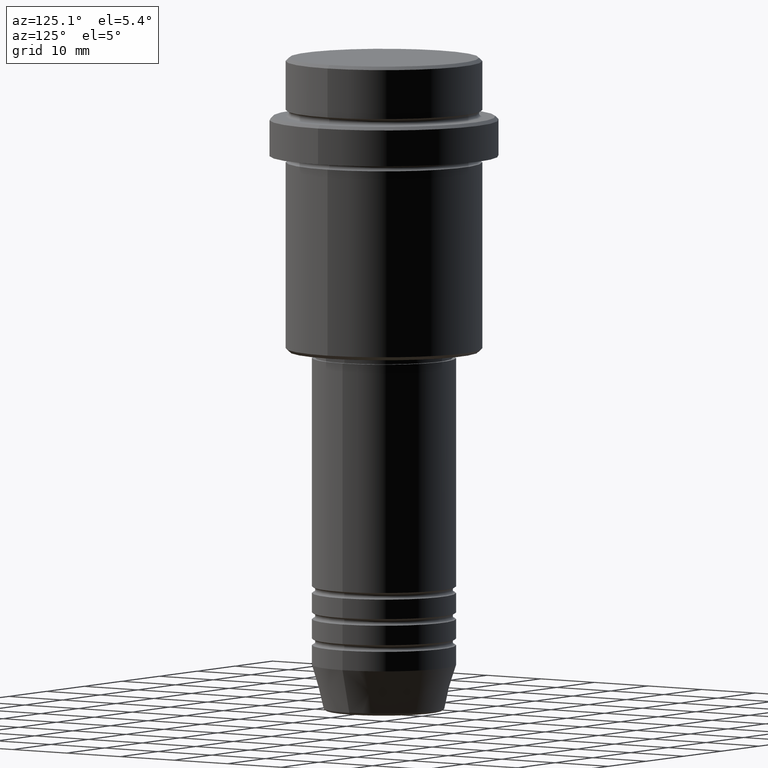
[diagram: clean part render]
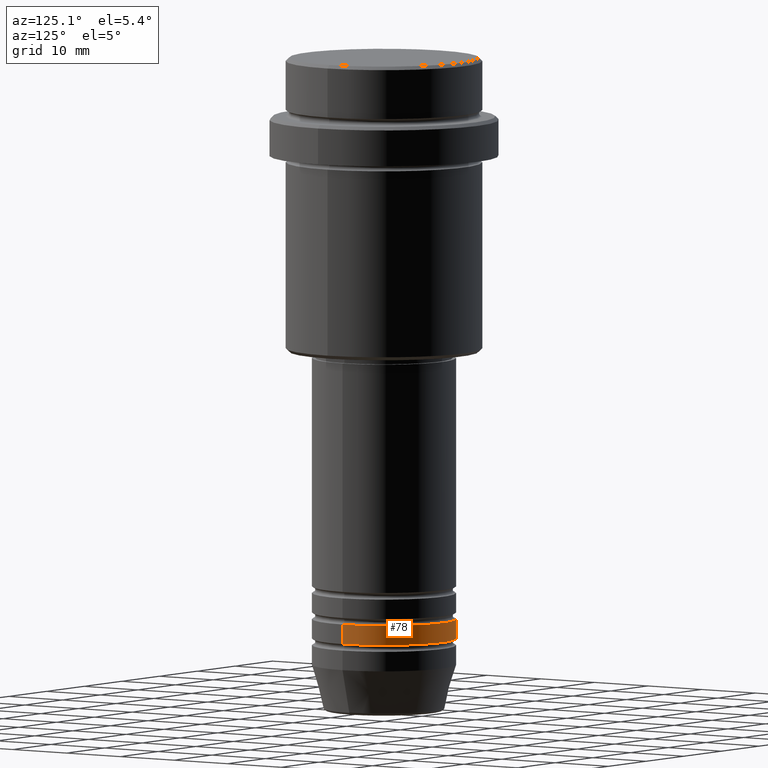
[diagram: same view with one face highlighted and labeled with its STEP entity id]
A machine part, auxiliary view. The second image highlights one B-rep face of the part: STEP entity #78.
In plain terms, the highlighted cylindrical surface (partial cylindrical patch) has radius 11 mm, axis along (-0, -0, 1).
Its self-contained STEP definition (entity closure, byte-faithful):
#78 = ADVANCED_FACE ( 'NONE', ( #863 ), #1304, .T. ) ;
#122 = VECTOR ( 'NONE', #321, 1000.000000000000000 ) ;
#145 = CARTESIAN_POINT ( 'NONE',  ( -11.00000000000000000, 1.347111479062088405E-15, -85.99999999999988631 ) ) ;
#148 = EDGE_CURVE ( 'NONE', #1260, #212, #962, .T. ) ;
#212 = VERTEX_POINT ( 'NONE', #312 ) ;
#243 = CIRCLE ( 'NONE', #579, 11.00000000000000000 ) ;
#312 = CARTESIAN_POINT ( 'NONE',  ( 11.00000000000000000, 0.000000000000000000, -85.99999999999988631 ) ) ;
#321 = DIRECTION ( 'NONE',  ( -0.000000000000000000, -0.000000000000000000, 1.000000000000000000 ) ) ;
#333 = ORIENTED_EDGE ( 'NONE', *, *, #1306, .T. ) ;
#368 = ORIENTED_EDGE ( 'NONE', *, *, #1317, .F. ) ;
#440 = ORIENTED_EDGE ( 'NONE', *, *, #821, .T. ) ;
#473 = CARTESIAN_POINT ( 'NONE',  ( 0.000000000000000000, 0.000000000000000000, 0.000000000000000000 ) ) ;
#528 = CARTESIAN_POINT ( 'NONE',  ( 11.00000000000000000, 0.000000000000000000, 0.000000000000000000 ) ) ;
#549 = VERTEX_POINT ( 'NONE', #1390 ) ;
#579 = AXIS2_PLACEMENT_3D ( 'NONE', #900, #1124, #789 ) ;
#645 = AXIS2_PLACEMENT_3D ( 'NONE', #1014, #675, #1111 ) ;
#675 = DIRECTION ( 'NONE',  ( -0.000000000000000000, -0.000000000000000000, 1.000000000000000000 ) ) ;
#697 = DIRECTION ( 'NONE',  ( -0.000000000000000000, -0.000000000000000000, 1.000000000000000000 ) ) ;
#704 = DIRECTION ( 'NONE',  ( -0.000000000000000000, -0.000000000000000000, 1.000000000000000000 ) ) ;
#778 = VECTOR ( 'NONE', #704, 1000.000000000000000 ) ;
#789 = DIRECTION ( 'NONE',  ( 1.000000000000000000, 0.000000000000000000, 0.000000000000000000 ) ) ;
#821 = EDGE_CURVE ( 'NONE', #549, #1310, #1010, .T. ) ;
#863 = FACE_OUTER_BOUND ( 'NONE', #1062, .T. ) ;
#887 = CARTESIAN_POINT ( 'NONE',  ( -11.00000000000000000, 1.347111479062088405E-15, 0.000000000000000000 ) ) ;
#900 = CARTESIAN_POINT ( 'NONE',  ( 0.000000000000000000, 0.000000000000000000, -88.99999999999988631 ) ) ;
#920 = CIRCLE ( 'NONE', #645, 11.00000000000000000 ) ;
#962 = LINE ( 'NONE', #528, #122 ) ;
#1010 = LINE ( 'NONE', #887, #778 ) ;
#1014 = CARTESIAN_POINT ( 'NONE',  ( 0.000000000000000000, 0.000000000000000000, -85.99999999999988631 ) ) ;
#1062 = EDGE_LOOP ( 'NONE', ( #333, #440, #368, #1279 ) ) ;
#1111 = DIRECTION ( 'NONE',  ( 1.000000000000000000, 0.000000000000000000, 0.000000000000000000 ) ) ;
#1124 = DIRECTION ( 'NONE',  ( -0.000000000000000000, -0.000000000000000000, 1.000000000000000000 ) ) ;
#1217 = CARTESIAN_POINT ( 'NONE',  ( 11.00000000000000000, 0.000000000000000000, -88.99999999999988631 ) ) ;
#1246 = DIRECTION ( 'NONE',  ( 1.000000000000000000, 0.000000000000000000, 0.000000000000000000 ) ) ;
#1260 = VERTEX_POINT ( 'NONE', #1217 ) ;
#1279 = ORIENTED_EDGE ( 'NONE', *, *, #148, .F. ) ;
#1304 = CYLINDRICAL_SURFACE ( 'NONE', #1331, 11.00000000000000000 ) ;
#1306 = EDGE_CURVE ( 'NONE', #1260, #549, #243, .T. ) ;
#1310 = VERTEX_POINT ( 'NONE', #145 ) ;
#1317 = EDGE_CURVE ( 'NONE', #212, #1310, #920, .T. ) ;
#1331 = AXIS2_PLACEMENT_3D ( 'NONE', #473, #697, #1246 ) ;
#1390 = CARTESIAN_POINT ( 'NONE',  ( -11.00000000000000000, 1.347111479062088405E-15, -88.99999999999988631 ) ) ;